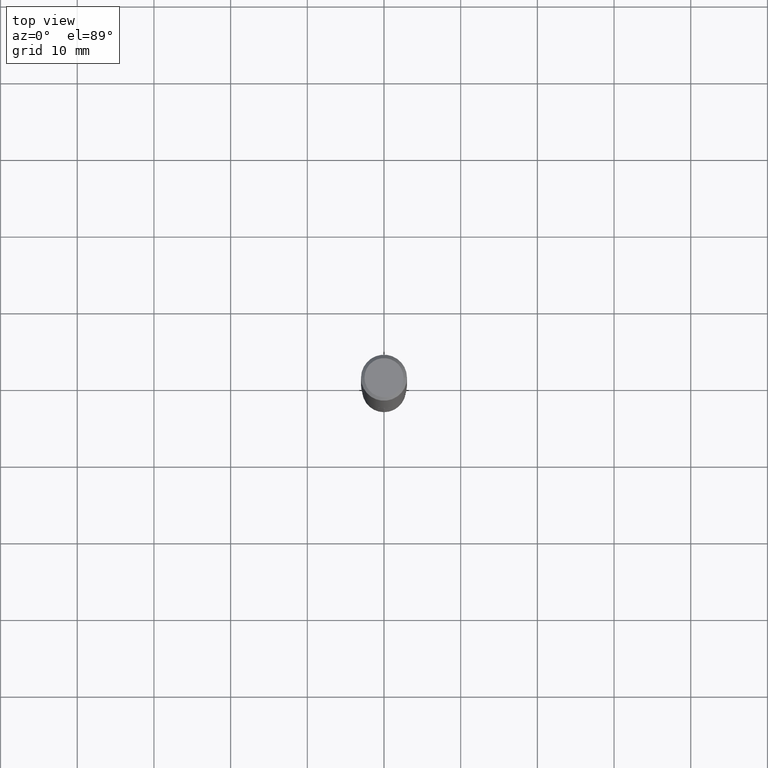
[diagram: clean part render]
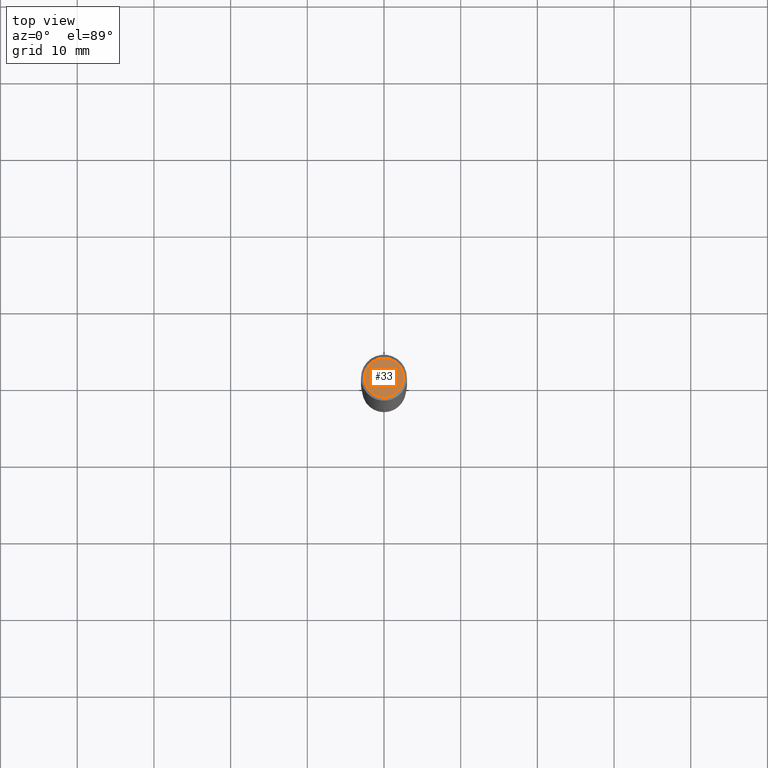
[diagram: same view with one face highlighted and labeled with its STEP entity id]
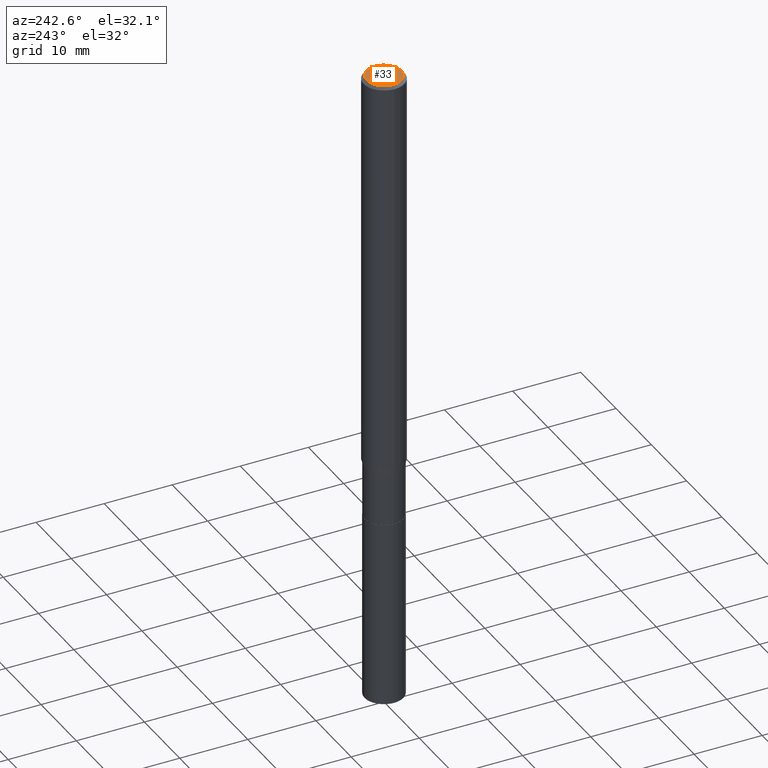
[diagram: same view with one face highlighted and labeled with its STEP entity id]
A machine part, top view. The second image highlights one B-rep face of the part: STEP entity #33.
A second angle (auxiliary view) of the same face is appended — the face is thin or edge-on in the first view.
In plain terms, the highlighted planar face has unit normal (0, -0, -1).
Its self-contained STEP definition (entity closure, byte-faithful):
#12 = DIRECTION ( 'NONE',  ( 2.438088387897960049E-29, -3.491481338843145188E-15, -1.000000000000000000 ) ) ;
#13 = CARTESIAN_POINT ( 'NONE',  ( 7.015701749847187307E-46, -1.001656274515824970E-31, -2.868857591682589212E-17 ) ) ;
#19 = AXIS2_PLACEMENT_3D ( 'NONE', #13, #310, #459 ) ;
#33 = ADVANCED_FACE ( 'NONE', ( #442 ), #242, .F. ) ;
#50 = AXIS2_PLACEMENT_3D ( 'NONE', #445, #12, #308 ) ;
#52 = VERTEX_POINT ( 'NONE', #237 ) ;
#78 = EDGE_CURVE ( 'NONE', #52, #141, #320, .T. ) ;
#102 = CIRCLE ( 'NONE', #19, 0.1003850000000000159 ) ;
#125 = CARTESIAN_POINT ( 'NONE',  ( 7.015701749847187307E-46, -1.001656274515824970E-31, -2.868857591682589212E-17 ) ) ;
#141 = VERTEX_POINT ( 'NONE', #307 ) ;
#153 = DIRECTION ( 'NONE',  ( 1.000000000000000000, -6.982962677686266711E-15, 4.875668750515085695E-29 ) ) ;
#194 = ORIENTED_EDGE ( 'NONE', *, *, #78, .T. ) ;
#224 = ORIENTED_EDGE ( 'NONE', *, *, #343, .T. ) ;
#237 = CARTESIAN_POINT ( 'NONE',  ( -0.1003850000000000159, 7.319105043583387675E-16, -2.868857591683090262E-17 ) ) ;
#242 = PLANE ( 'NONE',  #50 ) ;
#243 = AXIS2_PLACEMENT_3D ( 'NONE', #125, #309, #153 ) ;
#307 = CARTESIAN_POINT ( 'NONE',  ( 0.1003850000000000159, -7.803837484803599345E-16, -2.868857591682071522E-17 ) ) ;
#308 = DIRECTION ( 'NONE',  ( -1.000000000000000000, 6.982962677686265922E-15, -4.876176775795935793E-29 ) ) ;
#309 = DIRECTION ( 'NONE',  ( -2.445468806185136597E-29, 3.491481338843145583E-15, 1.000000000000000000 ) ) ;
#310 = DIRECTION ( 'NONE',  ( -2.445468806185136597E-29, 3.491481338843145583E-15, 1.000000000000000000 ) ) ;
#320 = CIRCLE ( 'NONE', #243, 0.1003850000000000159 ) ;
#342 = EDGE_LOOP ( 'NONE', ( #194, #224 ) ) ;
#343 = EDGE_CURVE ( 'NONE', #141, #52, #102, .T. ) ;
#442 = FACE_OUTER_BOUND ( 'NONE', #342, .T. ) ;
#445 = CARTESIAN_POINT ( 'NONE',  ( 3.507850874923593654E-46, -5.008281372579124849E-32, -1.434428795841294606E-17 ) ) ;
#459 = DIRECTION ( 'NONE',  ( 1.000000000000000000, -6.982962677686266711E-15, 4.875668750515085695E-29 ) ) ;